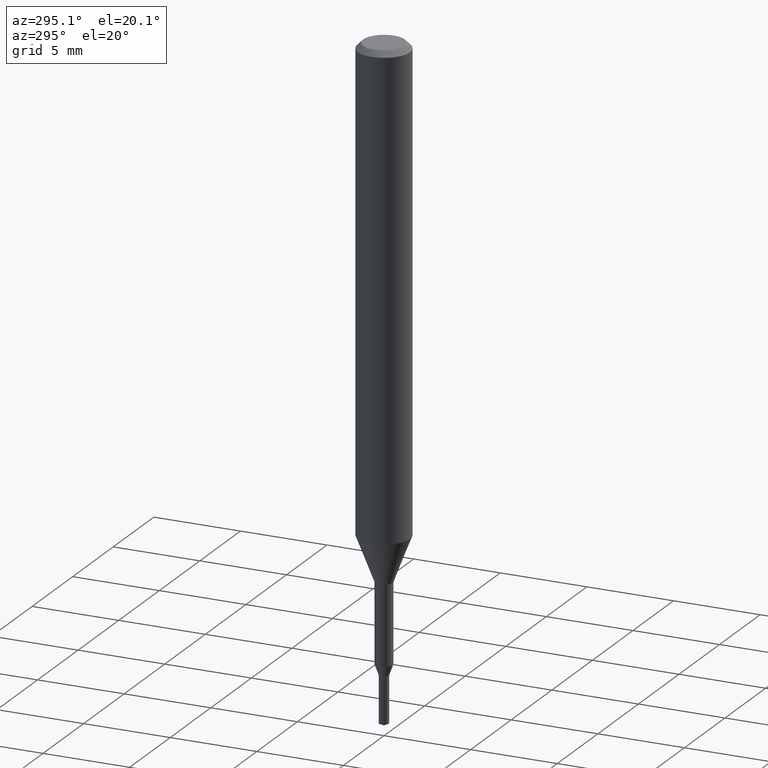
[diagram: clean part render]
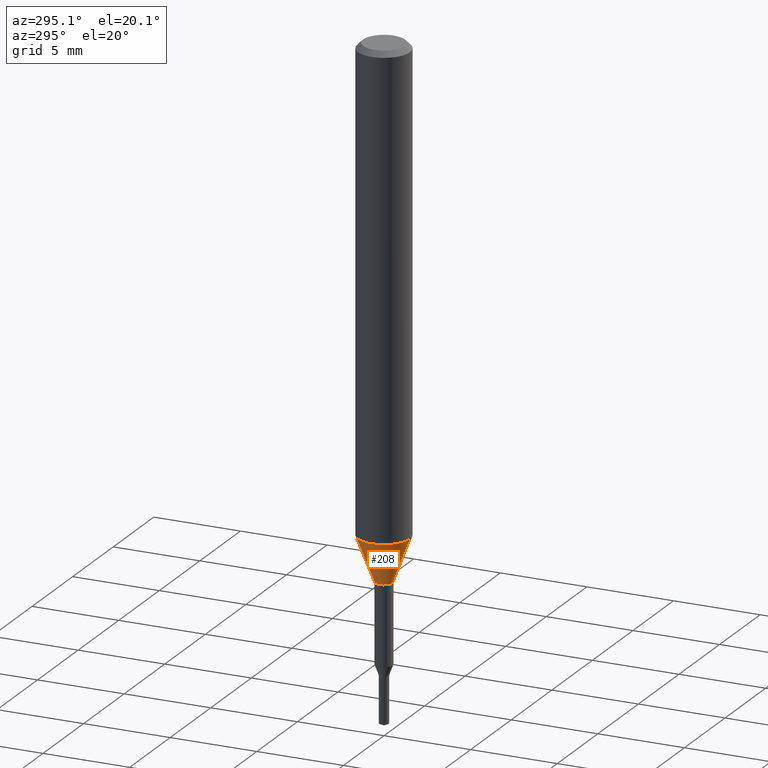
[diagram: same view with one face highlighted and labeled with its STEP entity id]
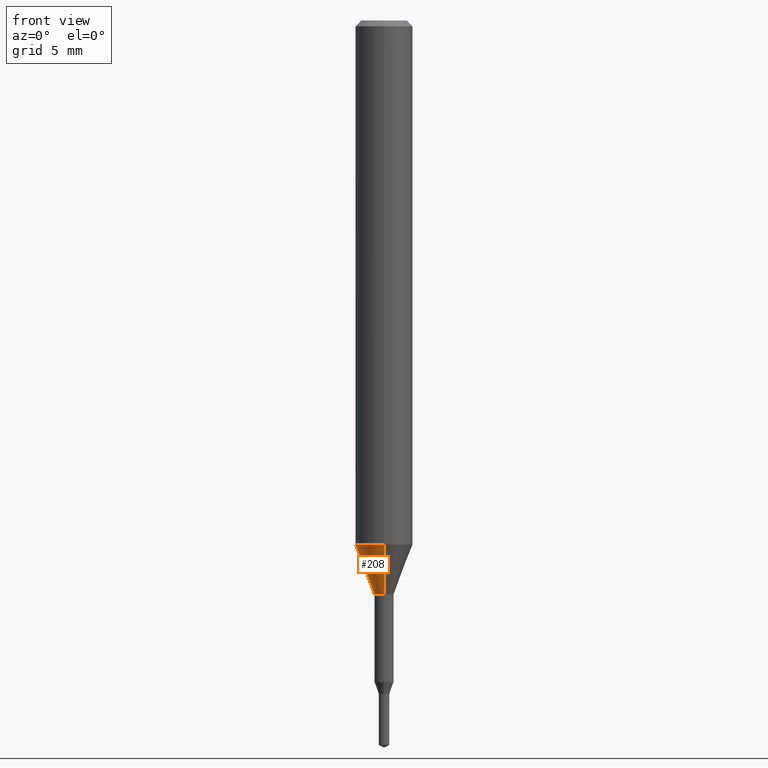
[diagram: same view with one face highlighted and labeled with its STEP entity id]
A machine part, auxiliary view. The second image highlights one B-rep face of the part: STEP entity #208.
A second angle (front view) of the same face is appended — the face is thin or edge-on in the first view.
In plain terms, the highlighted conical surface has half-angle 21.001 deg.
Its self-contained STEP definition (entity closure, byte-faithful):
#118=VERTEX_POINT('',#296);
#166=VERTEX_POINT('',#351);
#168=EDGE_CURVE('',#176,#254,#353,.T.);
#176=VERTEX_POINT('',#363);
#208=ADVANCED_FACE('',(#397),#398,.T.);
#220=EDGE_CURVE('',#118,#166,#410,.T.);
#254=VERTEX_POINT('',#449);
#256=EDGE_CURVE('',#254,#166,#451,.T.);
#268=EDGE_CURVE('',#118,#176,#466,.T.);
#296=CARTESIAN_POINT('',(6.12303176911189E-017,-0.5,-30.0));
#351=CARTESIAN_POINT('',(0.0,0.5,-30.0));
#353=CIRCLE('',#555,1.5);
#363=CARTESIAN_POINT('',(1.83690953073357E-016,-1.5,-27.395));
#397=FACE_OUTER_BOUND('',#614,.T.);
#398=CONICAL_SURFACE('',#615,1.0,0.366530581623394);
#410=CIRCLE('',#636,0.5);
#449=CARTESIAN_POINT('',(0.0,1.5,-27.395));
#451=LINE('',#687,#688);
#466=LINE('',#705,#706);
#555=AXIS2_PLACEMENT_3D('',#786,#787,#788);
#614=EDGE_LOOP('',(#845,#846,#847,#848));
#615=AXIS2_PLACEMENT_3D('',#849,#850,#851);
#636=AXIS2_PLACEMENT_3D('',#861,#862,#863);
#687=CARTESIAN_POINT('',(-1.22460635382238E-016,1.0,-28.6975));
#688=VECTOR('',#919,1.0);
#705=CARTESIAN_POINT('',(1.22460635382238E-016,-1.0,-28.6975));
#706=VECTOR('',#937,1.0);
#786=CARTESIAN_POINT('',(0.0,0.0,-27.395));
#787=DIRECTION('',(0.0,0.0,-1.0));
#788=DIRECTION('',(0.0,1.0,0.0));
#845=ORIENTED_EDGE('',*,*,#256,.T.);
#846=ORIENTED_EDGE('',*,*,#220,.F.);
#847=ORIENTED_EDGE('',*,*,#268,.T.);
#848=ORIENTED_EDGE('',*,*,#168,.T.);
#849=CARTESIAN_POINT('',(0.0,0.0,-28.6975));
#850=DIRECTION('',(-0.0,-0.0,1.0));
#851=DIRECTION('',(0.0,1.0,0.0));
#861=CARTESIAN_POINT('',(0.0,0.0,-30.0));
#862=DIRECTION('',(0.0,0.0,-1.0));
#863=DIRECTION('',(0.0,1.0,0.0));
#919=DIRECTION('',(4.38872745501645E-017,-0.35837862847256,-0.933576327171018));
#937=DIRECTION('',(4.38872745501645E-017,-0.35837862847256,0.933576327171018));